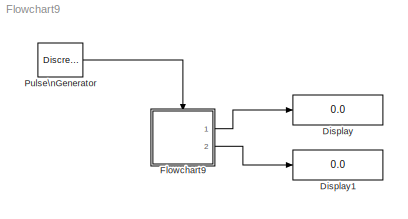
MODEL Flowchart9
KIND model
BLOCK [Display] Display
  Decimation = 1
  Ports = [1]
BLOCK [Display] Display1
  Decimation = 1
  Ports = [1]
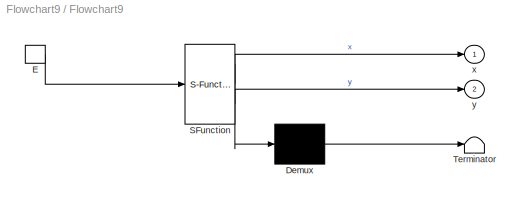
BLOCK [SubSystem] Flowchart9
  MaskDescription = Stateflow diagram
  MaskDisplay = plot(sf('Private','sfblk','xIcon'),sf('Private','sfblk','yIcon'));text(0.5,0,sf('Private', 'sfblk', 'tIcon'),'HorizontalAl','Center','VerticalAl','Bottom');
  MaskIconFrame = off
  MaskIconOpaque = off
  MaskIconRotate = none
  MaskIconUnits = autoscale
  MaskSelfModifiable = on
  MaskType = Stateflow
  MinAlgLoopOccurrences = off
  Ports = [0, 2, 0, 1]
  RTWSystemCode = Auto
  TreatAsAtomicUnit = off
BLOCK [Demux] Flowchart9/ Demux 
  Outputs = 1
  Ports = [1, 1]
BLOCK [S-Function] Flowchart9/ SFunction 
  FunctionName = sf_sfun
  PortCounts = [1 3]
  Ports = [1, 3]
  Tag = Stateflow S-Function Flowchart9 1
BLOCK [Terminator] Flowchart9/ Terminator 
BLOCK [TriggerPort] Flowchart9/E
  Ports = [0, 1]
  ShowOutputPort = on
  TriggerType = either
BLOCK [Outport] Flowchart9/x
  BusOutputAsStruct = off
  IconDisplay = Port number
BLOCK [Outport] Flowchart9/y
  BusOutputAsStruct = off
  IconDisplay = Port number
  Port = 2
BLOCK [DiscretePulseGenerator] Pulse\nGenerator
  Ports = [0, 1]
LINE Flowchart9/ Demux :1 -> Flowchart9/ Terminator :1
LINE Flowchart9/ SFunction :1 -> Flowchart9/ Demux :1
LINE Flowchart9/ SFunction :2 -> Flowchart9/x:1
LINE Flowchart9/ SFunction :3 -> Flowchart9/y:1
LINE Flowchart9/E:1 -> Flowchart9/ SFunction :1
LINE Flowchart9:1 -> Display:1
LINE Flowchart9:2 -> Display1:1
LINE Pulse\nGenerator:1 -> Flowchart9:trigger
CHART Flowchart9 states=3 transitions=5
  STATE_LABEL 'A'
  STATE_LABEL 'B'
  STATE_LABEL 'TOP'
